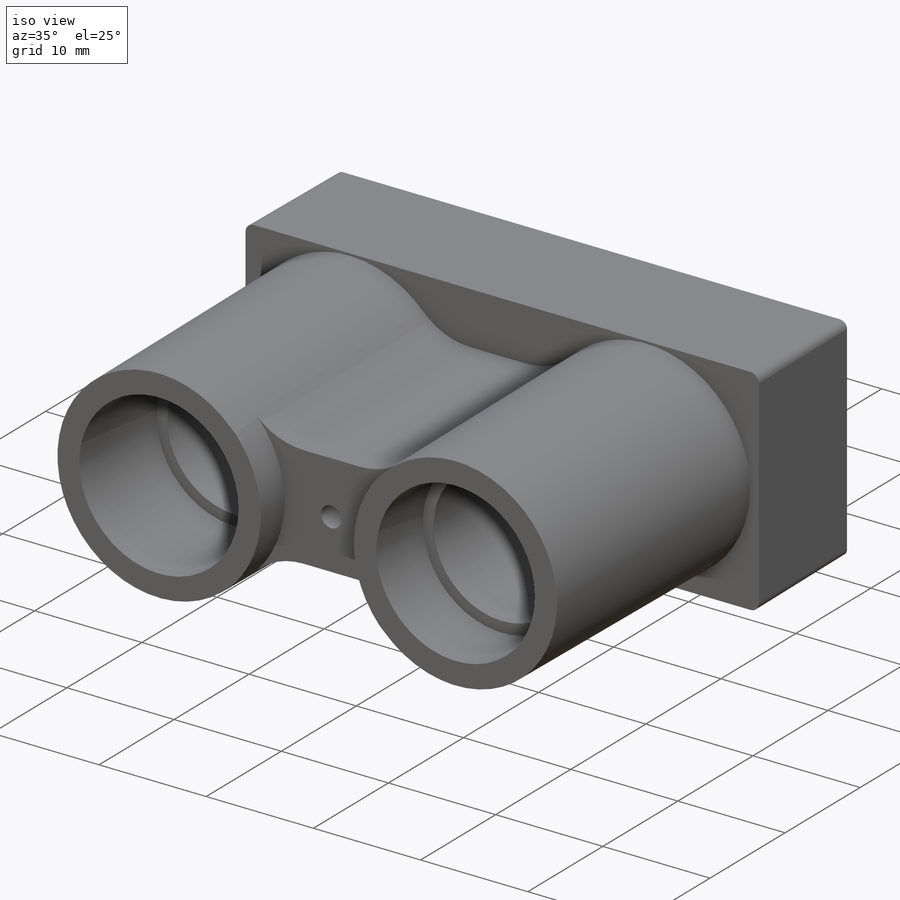
[diagram: iso view]
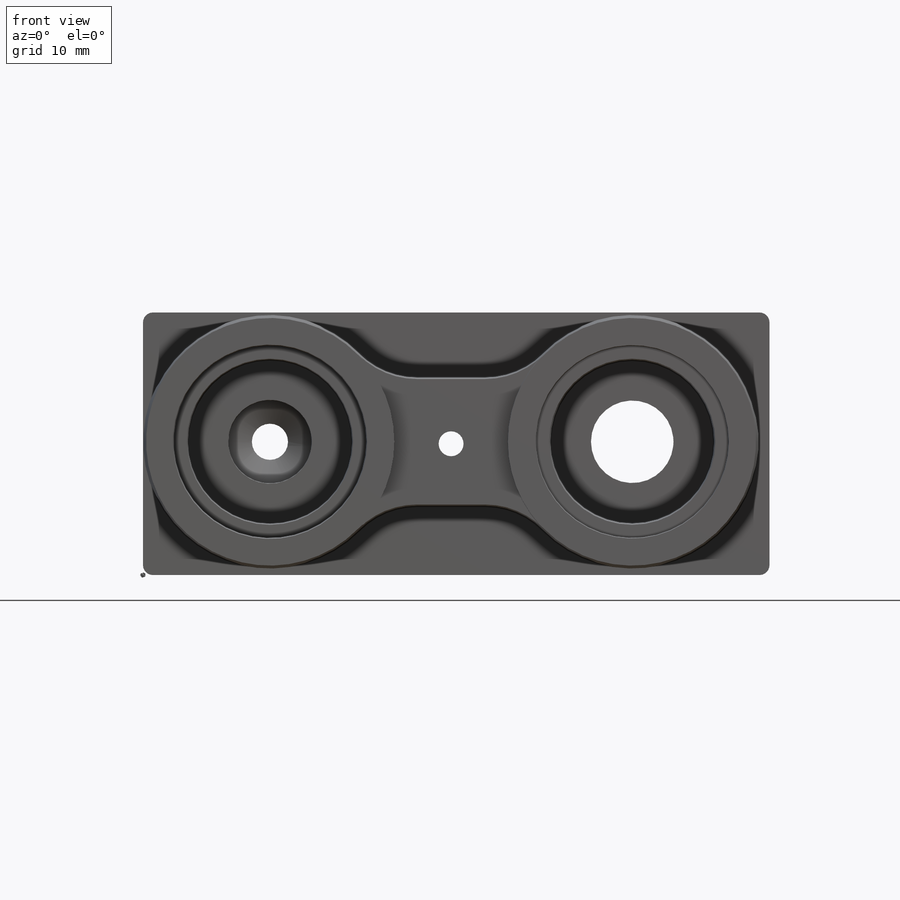
[diagram: front view]
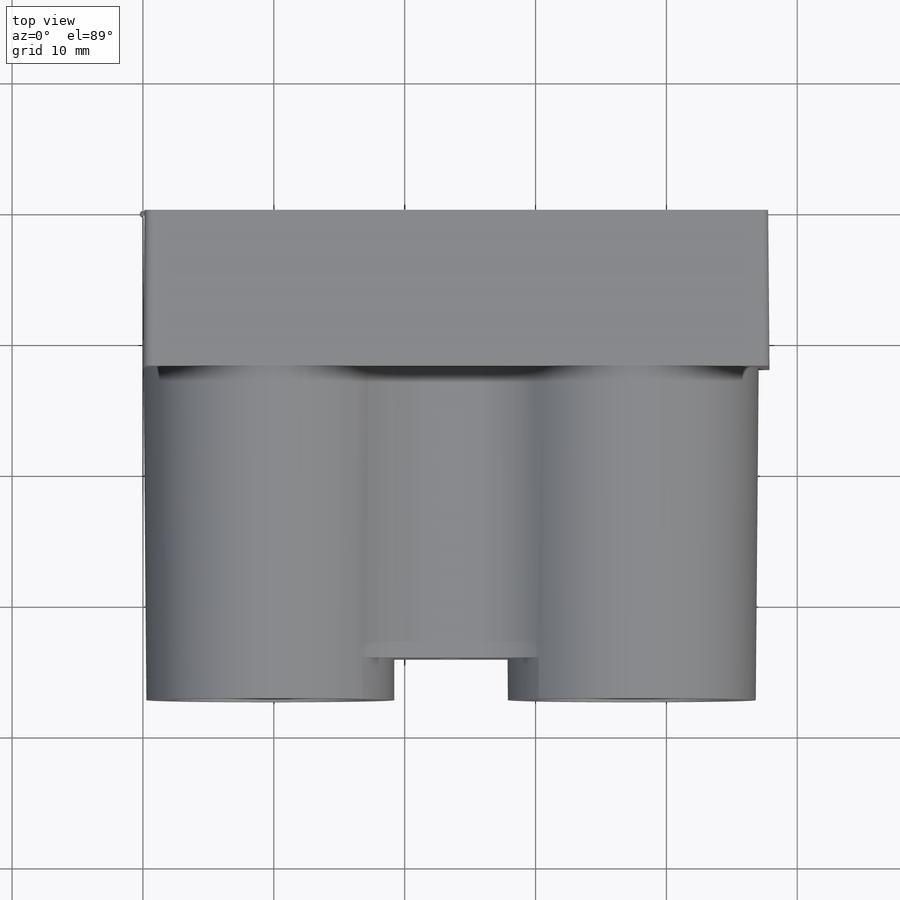
[diagram: top view]
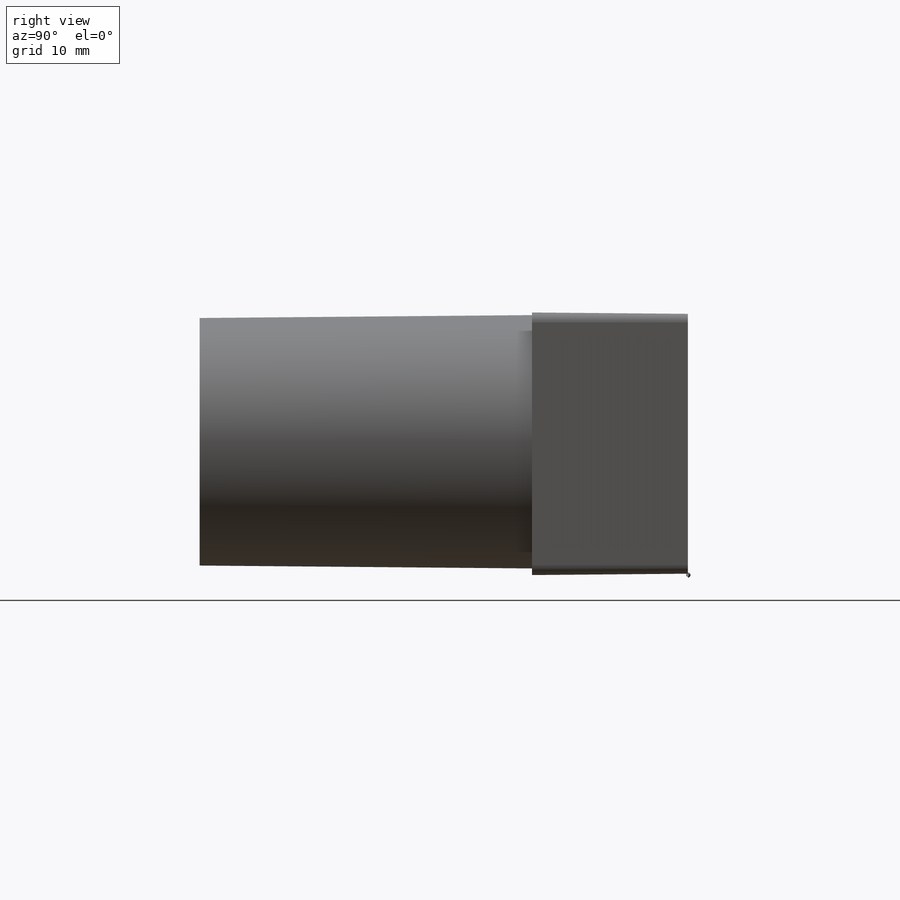
[diagram: right view]
SOLIDWORKS PART (.sldprt)
format: sldprt  version: not decoded by parser v0  size: 1,401,344 bytes
history: native  units: mm
features: sketch x21, cut_extrude x15, fillet x6, extrude x4, plane x2, cut_revolve x2, material x1, chamfer x1 (+13 scaffold rows collapsed)
feature tree (65):
  scaffold x13  (default folders/planes/origin — collapsed)
  material  "ABS"
  sketch  "Sketch1"
  extrude  "Boss-Extrude1"  Depth=37.3126mm
  sketch  "Sketch2"  dims[c1.D3=~14.914973mm c1.D4=6.35mm c1.D6=6.35mm c1.D10=9.4996mm c1.D1=10.4902mm c1.D2=9.8806mm c2.D3=27.686mm c2.D4=9.525mm c2.D5=4.7625mm c2.D7=9.7028mm c2.D8=4.7625mm c2.D9=9.525mm c3.D8=4.7625mm]
  cut_extrude  "Cut-Extrude1"  Depth=25.4mm
  sketch  "Sketch3"  dims[D1=2.1971mm]
  cut_extrude  "Cut-Extrude2"  [1 undecoded]
  sketch  "Sketch4"  dims[D7=0.762mm D1=1.397mm D2=1.397mm D3=17.272mm D4=45.085mm D5=1.397mm D6=1.397mm]
  cut_extrude  "Cut-Extrude3"  Depth=4.5212mm
  sketch  "Sketch5"  dims[c1.D1=~0.770748mm c1.D2=1.4986mm c1.D3=~0.986842mm c1.D4=1.4986mm c1.D5=0.7493mm c1.D7=~4.754305mm c1.D8=4.9105mm c1.D11=~0.79375mm c2.D2=1.5748mm c2.D3=4.2164mm c2.D5=~0.79375mm c2.D8=1.5748mm c2.D1=~4.18084mm c3.D2=~7.29742mm c3.D3=~4.18084mm c3.D4=~11.47318mm c3.D5=11.43mm c3.D6=5.334mm c3.D7=20.066mm c4.D7=7.19deg c4.D8=6.8834mm c5.D7=20.066mm c6.D7=7.19deg c6.D8=~10.42162mm c7.D8=36.625deg c7.D9=16.256mm c7.D10=6.5532mm c7.D4=36.7792mm c8.D4=~55.631913deg c8.D7=~1.553052mm c9.D7=30.0deg c9.D8=3.937mm c9.D3=1.016mm]
  cut_extrude  "Cut-Extrude4"  Depth=3.9878mm
  sketch  "Sketch9"  dims[D4=~0.79375mm D1=12.7mm D2=6.985mm D3=30.734mm D5=~6.19125mm]
  cut_extrude  "Cut-Extrude6"  Depth=10.3124mm
  sketch  "Sketch10"  dims[D1=7.3914mm]
  cut_extrude  "Cut-Extrude7"  Depth=26.162mm
  sketch  "Sketch12"  dims[D1=7.3279mm]
  sketch  "Sketch13"  dims[D1=7.3279mm]
  cut_extrude  "Cut-Extrude8"  Depth=6.1214mm
  cut_extrude  "Cut-Extrude9"  Depth=10.1854mm
  sketch  "Sketch14"  dims[c1.D1=1.5748mm c1.D2=1.5748mm c2.D1=1.5748mm c2.D3=1.5748mm c3.D1=1.5748mm c3.D5=1.5748mm c3.D3=~3.512075mm c3.D2=1.5748mm c3.D4=3.175mm c4.D1=~0.79375mm c4.D5=0.7874mm c4.D6=9.144mm c4.D7=0.7874mm c5.D1=~0.840606mm c5.D4=~4.296236mm c6.D4=~0.804157deg c6.D3=1.27mm c7.D4=~1.221377mm c7.D5=~2.890108mm c7.D3=~0.982912mm c8.D5=~4.462712mm c8.D2=~1.043007mm c8.D6=~3.711841mm]
  cut_extrude  "Cut-Extrude10"  Depth=3.9878mm
  fillet  "Fillet3"  Radius=0.7874mm
  fillet  "Fillet1"  Radius=0.762mm
  fillet  "Fillet2"  Radius=0.762mm
  sketch  "Sketch15"  dims[c1.D1=4.7625mm c1.D2=9.525mm c2.D1=4.7625mm c2.D2=9.525mm]
  cut_extrude  "Cut-Extrude11"  Depth=3.175mm
  plane  "Plane1"  Offset=10.033mm
  sketch  "Sketch22"  dims[c1.D1=6.35mm c1.D2=1.905mm c2.D1=13.843mm]
  cut_extrude  "Cut-Extrude12"  Depth=9.652mm
  sketch  "Sketch17"  dims[c1.D1=~4.078789mm c2.D1=118.0deg c2.D2=0.0mm c3.D1=~3.815465mm c3.D3=~7.408122mm c4.D3=59.0deg c4.D1=~7.408122mm c5.D1=59.0deg c5.D3=6.35mm c6.D1=~3.815465mm c7.D1=59.0deg c8.D1=~7.408122mm c9.D1=59.0deg c10.D1=~4.795968mm c11.D1=67.5deg c11.D2=6.35mm c12.D1=6.35mm c12.D2=~7.186708mm c13.D2=67.5deg]
  cut_revolve  "Cut-Revolve1"  Angle=360deg
  sketch  "Sketch18"  dims[c1.D1=~2.372141mm c2.D1=67.5deg]
  cut_revolve  "Cut-Revolve2"  Angle=360deg
  sketch  "Sketch8"  dims[c1.D1=1.143mm c1.D3=1.143mm c1.D4=1.143mm c1.D5=1.143mm c1.D7=1.143mm c2.D1=2.6924mm c2.D2=2.6162mm c3.D1=4.0132mm c3.D3=4.0132mm c3.D4=11.4808mm c3.D5=35.5854mm c3.D6=4.6736mm c3.D7=4.6736mm c4.D3=4.0132mm]
  cut_extrude  "Cut-Extrude5"  Depth=6.35mm
  sketch  "Sketch23"  dims[c1.D1=1.905mm c1.D3=1.905mm c2.D1=5.08mm c2.D3=5.08mm c3.D1=2.032mm c3.D2=1.524mm c3.D3=2.032mm c3.D4=2.032mm c3.D5=1.524mm c3.D6=2.032mm]
  cut_extrude  "Cut-Extrude13"  Depth=22.86mm
  sketch  "Sketch24"  dims[c1.D1=1.905mm c1.D2=4.445mm c1.D4=1.905mm c1.D3=0.635mm c2.D4=0.635mm]
  extrude  "Boss-Extrude2"  Depth=6.35mm
  fillet  "Fillet9"  Radius=0.127mm
  sketch  "Sketch26"  dims[D2=4.572mm D3=4.572mm D1=0.0mm]
  cut_extrude  "Cut-Extrude14"  [1 undecoded]
  sketch  "Sketch28"  dims[c1.D1=~6.280398mm c1.D6=~6.280398mm c2.D1=1.016mm c2.D2=0.635mm c2.D3=0.635mm c2.D4=0.635mm c2.D5=0.635mm c3.D1=1.016mm]
  extrude  "Boss-Extrude4"  [1 undecoded]
  fillet  "Fillet7"  Radius=0.79375mm
  sketch  "Sketch29"  dims[D1=2.794mm]
  extrude  "Boss-Extrude5"  Depth=2.54mm
  sketch  "Sketch30"  dims[c1.D2=2.8448mm c1.D3=2.8448mm c2.D2=2.794mm c2.D3=2.794mm c2.D1=~4.666666mm c3.D2=~4.722756mm c3.D1=1.4732mm c4.D2=1.4732mm c4.D3=1.4732mm c4.D4=1.4732mm c4.D5=4.191mm c5.D5=35.0deg c5.D6=4.191mm c6.D6=35.0deg c6.D7=0.4572mm c6.D8=0.4572mm c6.D1=1.4732mm c6.D2=1.4732mm c6.D3=1.4732mm c6.D4=1.4732mm]
  cut_extrude  "Cut-Extrude15"  Depth=0.79375mm
  fillet  "Fillet8"  Radius=0.127mm
  chamfer  "Chamfer2"  Distance=1.016mm Angle=61deg
  plane  "Plane2"
decode coverage: 45 of 49 modeling features carry decoded parameters
note: ~ marks probable driven/reference dimensions
note: 3 parameter values undecoded
summary: no parameter record found for 3 features
note: suppression state not decoded; provenance and decode notes live in map.json
